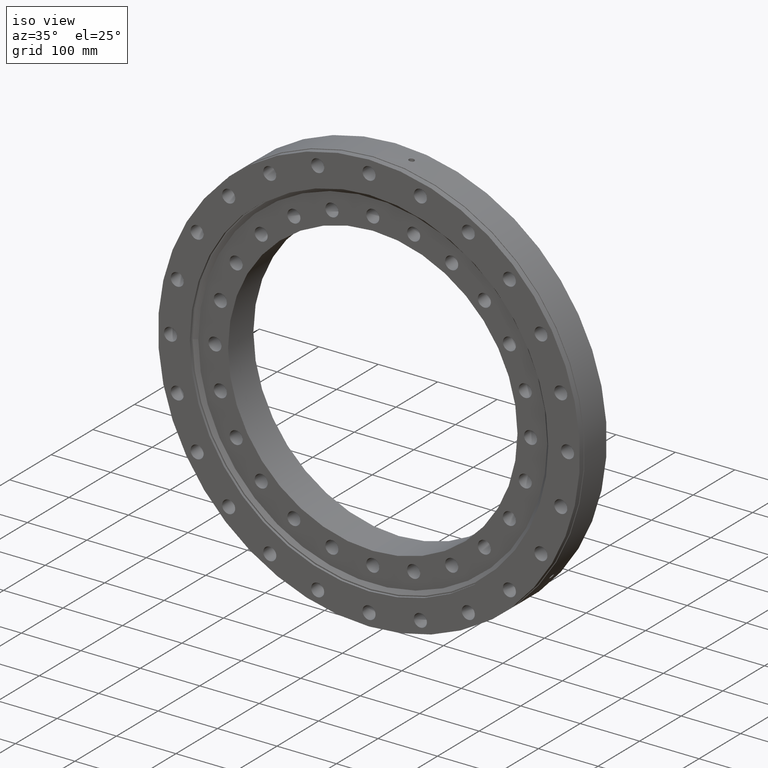
[diagram: clean part render]
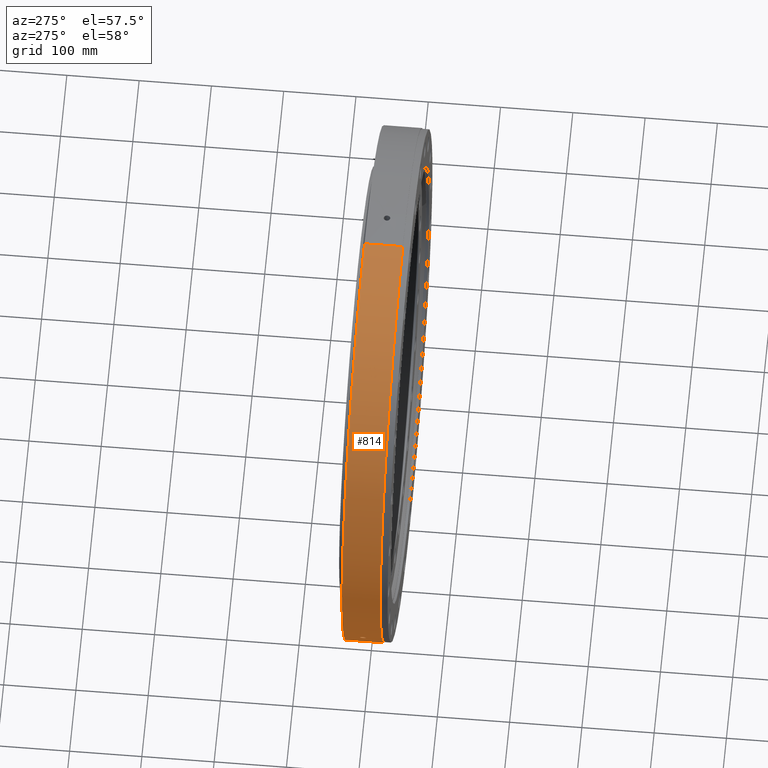
[diagram: tour spotlight — one face highlighted and labeled with its STEP entity id]
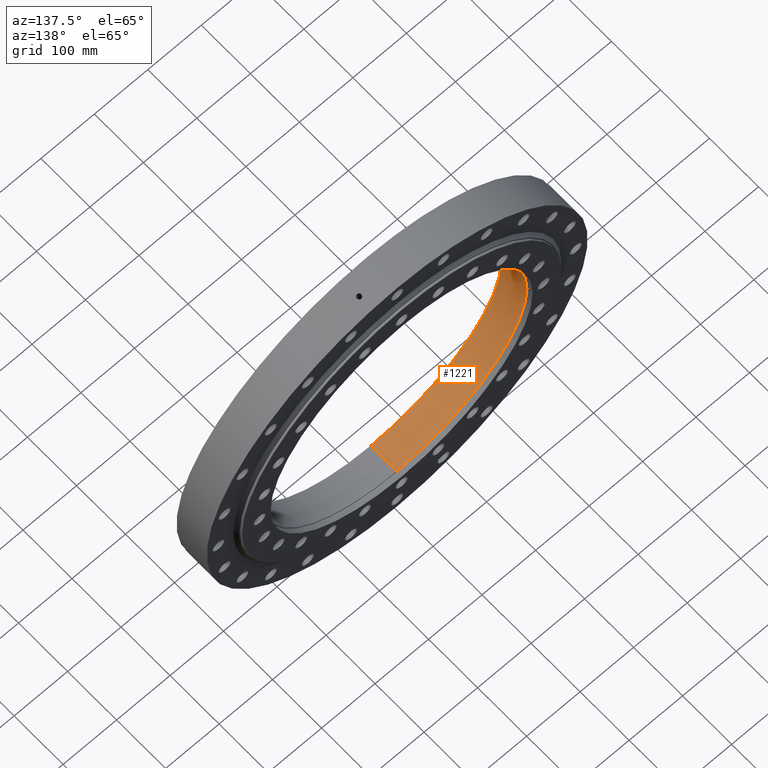
[diagram: tour spotlight — one face highlighted and labeled with its STEP entity id]
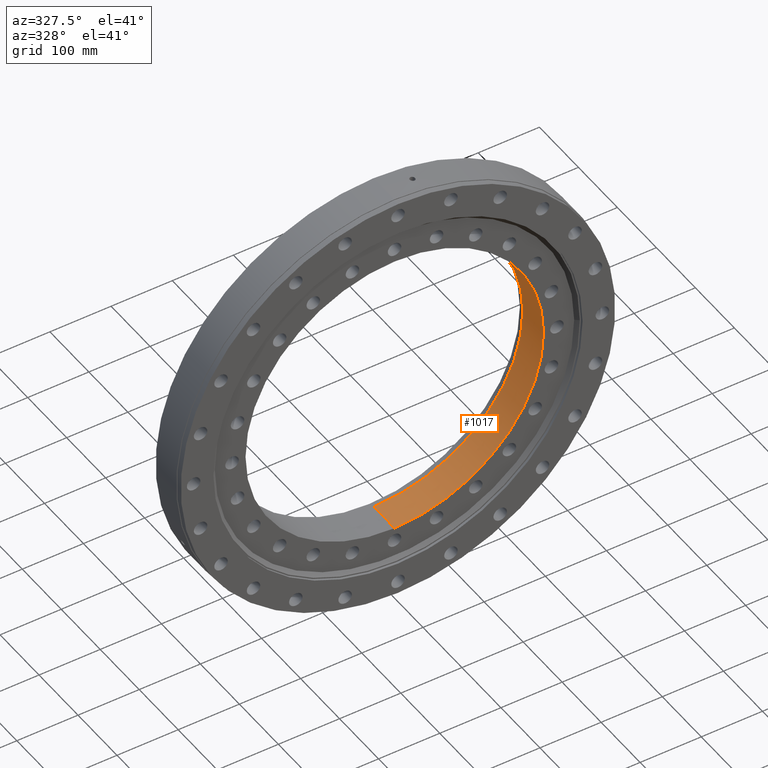
[diagram: tour spotlight — one face highlighted and labeled with its STEP entity id]
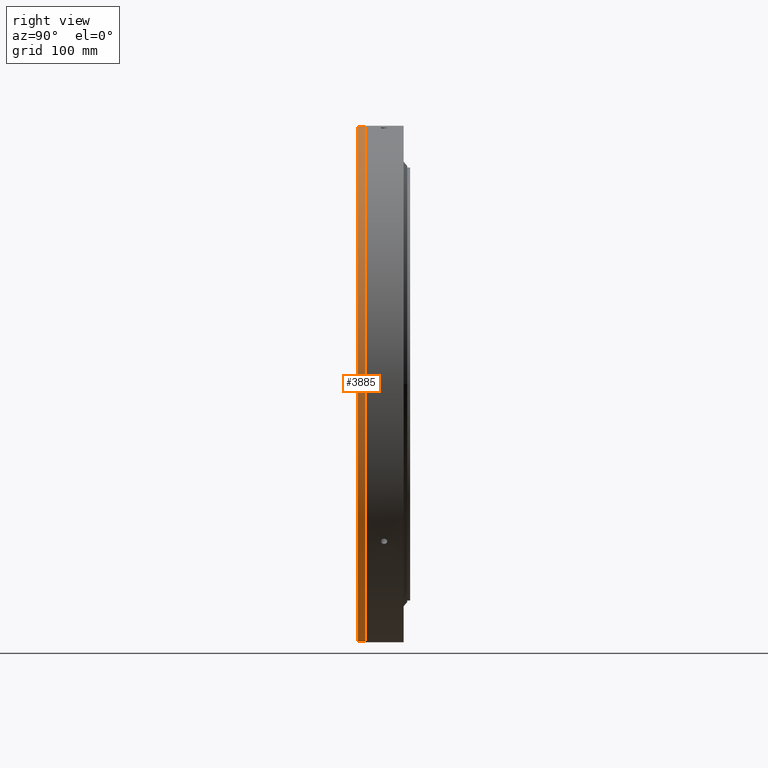
[diagram: tour spotlight — one face highlighted and labeled with its STEP entity id]
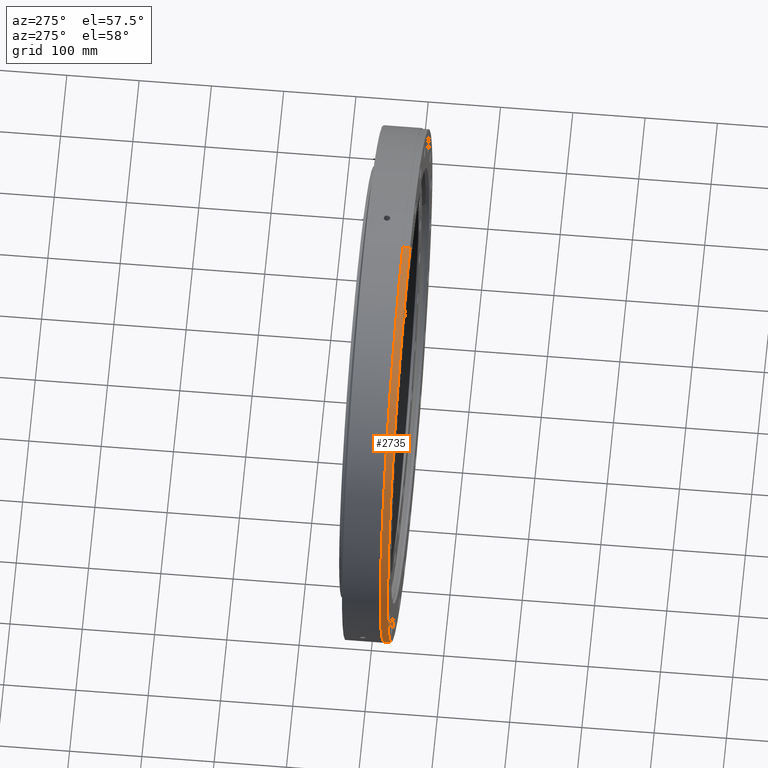
[diagram: tour spotlight — one face highlighted and labeled with its STEP entity id]
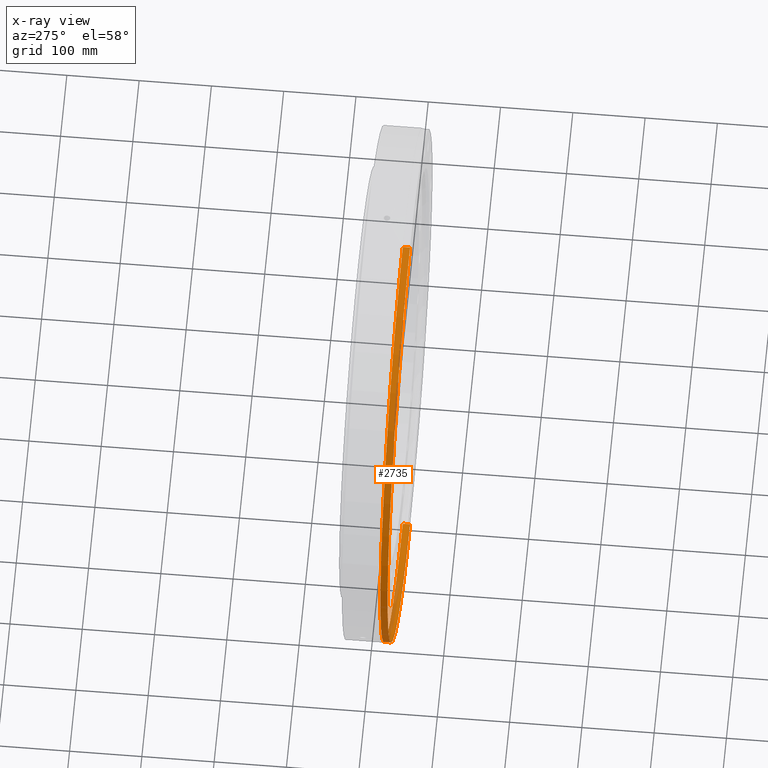
[diagram: x-ray of the same camera — body ghosted, this tour face saturated]
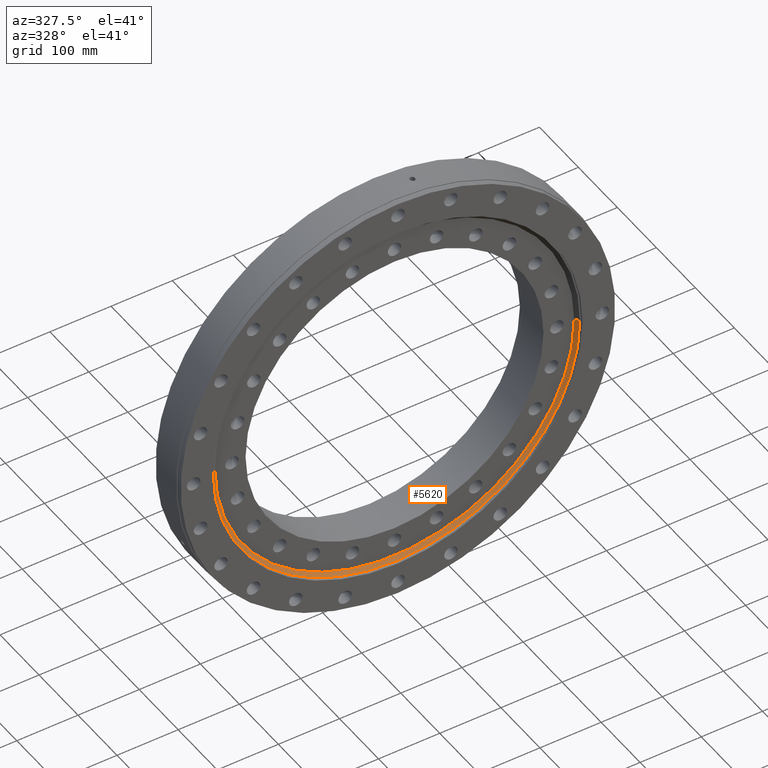
[diagram: tour spotlight — one face highlighted and labeled with its STEP entity id]
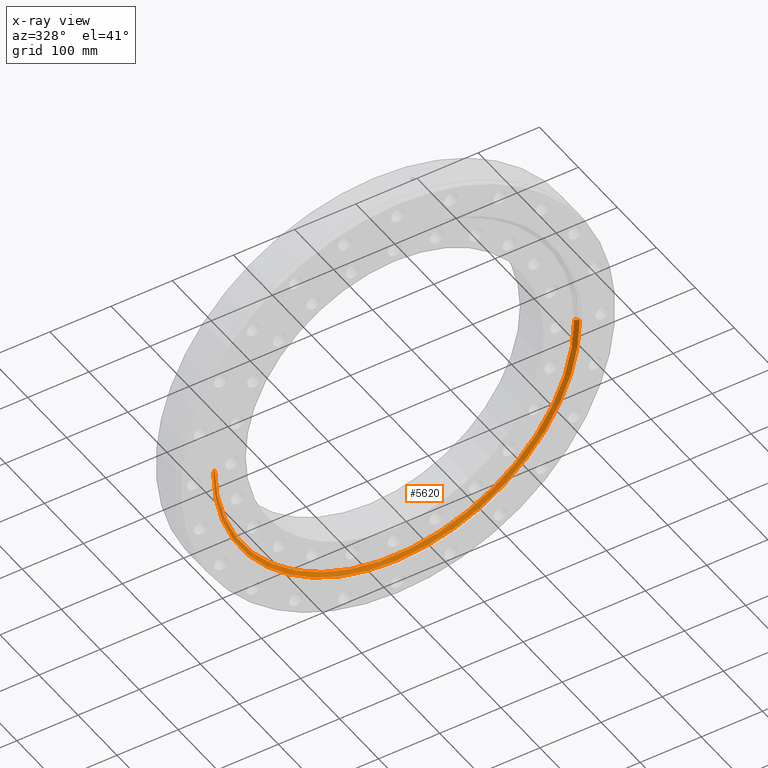
[diagram: x-ray of the same camera — body ghosted, this tour face saturated]
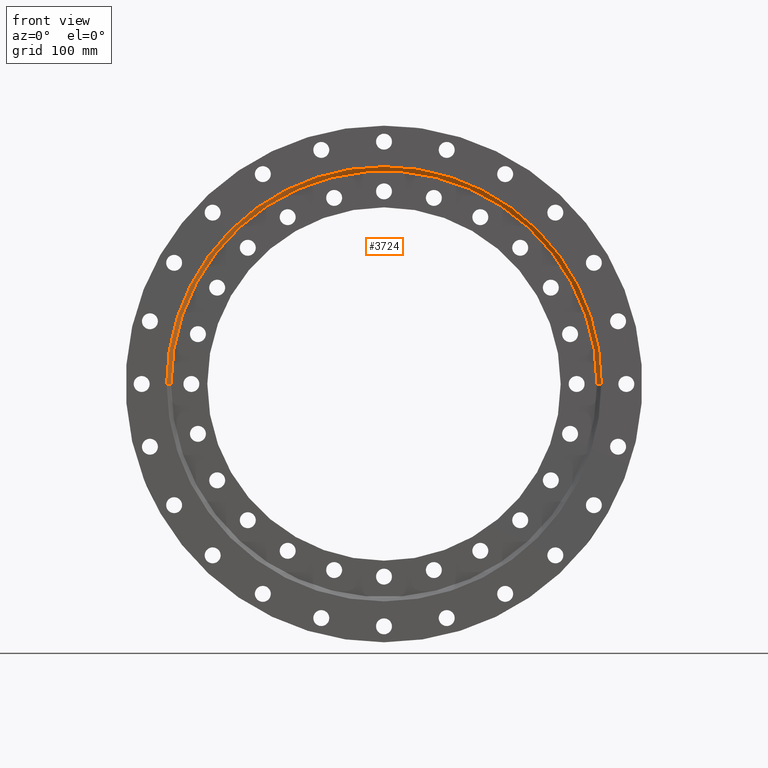
[diagram: tour spotlight — one face highlighted and labeled with its STEP entity id]
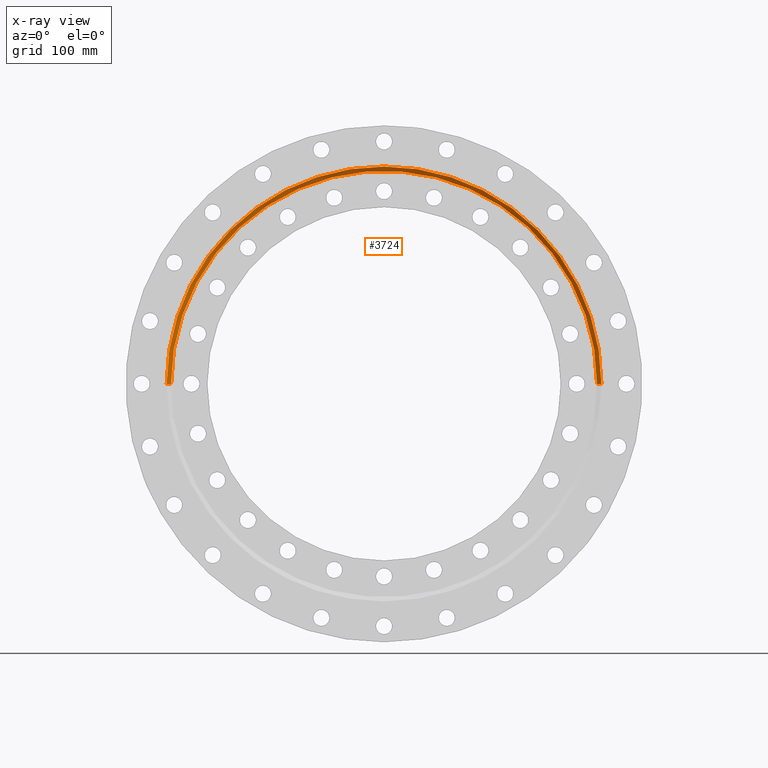
[diagram: x-ray of the same camera — body ghosted, this tour face saturated]
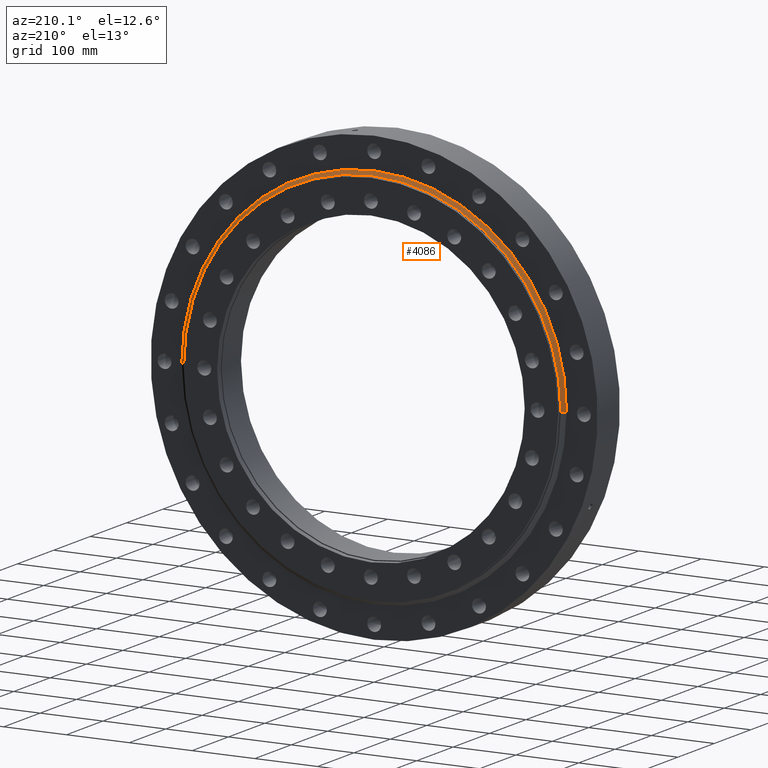
[diagram: tour spotlight — one face highlighted and labeled with its STEP entity id]
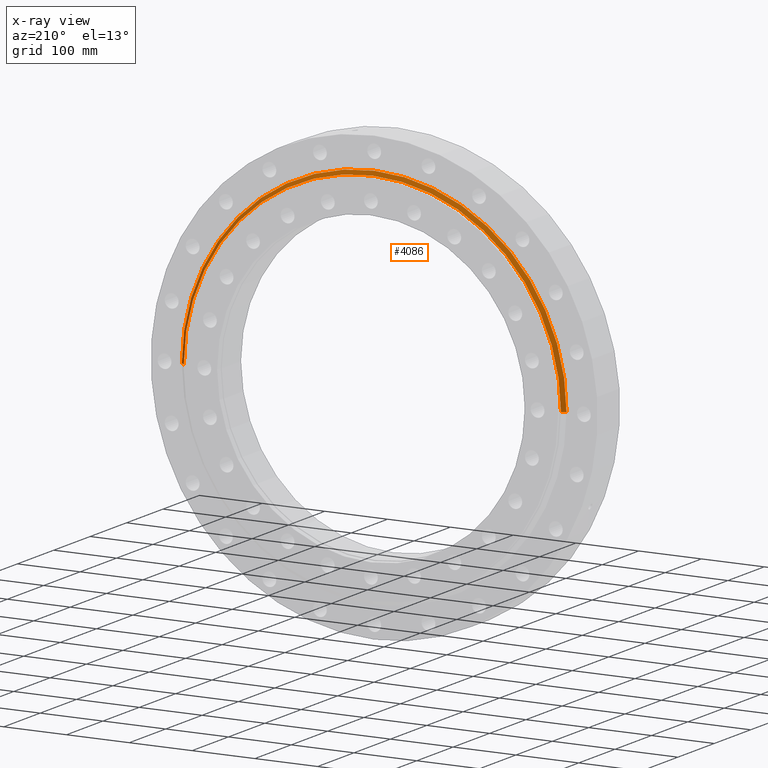
[diagram: x-ray of the same camera — body ghosted, this tour face saturated]
A machine part: a face-by-face anatomy tour. The part has 164 B-rep faces; the first image is the clean iso view, then the 8 largest visible faces are spotlighted one at a time (largest first), each with its STEP entity span.

Face 1 — auxiliary view, entity #814. In plain terms, the highlighted cylindrical surface (partial cylindrical patch) has radius 356 mm, axis along (-0, 1, -0).
Definition (entity closure, byte-faithful):
#479 = DIRECTION ( 'NONE',  ( 0.0000000000000000000, -4.872818752743839900E-017, -1.000000000000000000 ) ) ;
#487 = DIRECTION ( 'NONE',  ( 0.0000000000000000000, -1.000000000000000000, 5.328613396463909800E-017 ) ) ;
#493 = ORIENTED_EDGE ( 'NONE', *, *, #1100, .T. ) ;
#601 = DIRECTION ( 'NONE',  ( -0.0000000000000000000, 1.000000000000000000, -0.0000000000000000000 ) ) ;
#605 = AXIS2_PLACEMENT_3D ( 'NONE', #2501, #487, #479 ) ;
#796 = CARTESIAN_POINT ( 'NONE',  ( -330.4271939415286900, 1.997042786059136700, -132.4910644047244300 ) ) ;
#814 = ADVANCED_FACE ( 'NONE', ( #4787, #4983 ), #4641, .T. ) ;
#824 = CIRCLE ( 'NONE', #1428, 356.0000000000000000 ) ;
#842 = AXIS2_PLACEMENT_3D ( 'NONE', #1671, #3530, #1320 ) ;
#871 = CARTESIAN_POINT ( 'NONE',  ( -329.0132101183047600, 4.500247997915082000, -135.9646851159176600 ) ) ;
#887 = CARTESIAN_POINT ( 'NONE',  ( -328.7861197692954000, 4.499748828676175100, -136.5129132282840800 ) ) ;
#891 = CARTESIAN_POINT ( 'NONE',  ( -328.6740043066543500, 4.470445292756910000, -136.7826071033636300 ) ) ;
#1010 = CARTESIAN_POINT ( 'NONE',  ( 4.359742604964577000E-014, 22.16364734299516900, -356.0000000000000000 ) ) ;
#1021 = CARTESIAN_POINT ( 'NONE',  ( -329.4521224871458600, 4.271332156043720300, -134.8976407231726300 ) ) ;
#1045 = CARTESIAN_POINT ( 'NONE',  ( -329.9400164859307600, 3.581688725606091000, -133.6998327895142600 ) ) ;
#1052 = CARTESIAN_POINT ( 'NONE',  ( -329.1252313925938300, 4.471227261515164900, -135.6932743967939200 ) ) ;
#1082 = CARTESIAN_POINT ( 'NONE',  ( -329.3439687942141100, 4.357377859774766500, -135.1615066305037100 ) ) ;
#1086 = CARTESIAN_POINT ( 'NONE',  ( -327.7504454917547600, 3.387315624446554100, -138.9808923973960200 ) ) ;
#1100 = EDGE_CURVE ( 'NONE', #2029, #3570, #3224, .T. ) ;
#1143 = CARTESIAN_POINT ( 'NONE',  ( 0.0000000000000000000, 27.00000000000000400, 356.0000000000000000 ) ) ;
#1156 = EDGE_CURVE ( 'NONE', #3957, #2337, #3960, .T. ) ;
#1175 = CARTESIAN_POINT ( 'NONE',  ( -328.0311250438721800, 3.904562317007721300, -138.3171749185567900 ) ) ;
#1191 = CARTESIAN_POINT ( 'NONE',  ( -327.8406728299349300, 3.577392116918621100, -138.7679830271185000 ) ) ;
#1213 = CARTESIAN_POINT ( 'NONE',  ( -330.5860934775637400, 0.5914379281064137100, -132.0940505456970300 ) ) ;
#1287 = CARTESIAN_POINT ( 'NONE',  ( -330.5969119018097300, 0.2972615204962667500, -132.0669596870734200 ) ) ;
#1295 = CARTESIAN_POINT ( 'NONE',  ( -330.5969119018096800, 5.438588137684352900E-009, -132.0669596870734200 ) ) ;
#1320 = DIRECTION ( 'NONE',  ( 0.0000000000000000000, 0.0000000000000000000, 1.000000000000000000 ) ) ;
#1389 = EDGE_CURVE ( 'NONE', #2337, #2134, #3191, .T. ) ;
#1428 = AXIS2_PLACEMENT_3D ( 'NONE', #4618, #4635, #3078 ) ;
#1486 = CARTESIAN_POINT ( 'NONE',  ( -330.5428658219311200, 1.173645218378437400, -132.2021832064450800 ) ) ;
#1535 = CARTESIAN_POINT ( 'NONE',  ( -327.2433753956552200, 1.449890769225241000, -140.1705597386401200 ) ) ;
#1625 = CARTESIAN_POINT ( 'NONE',  ( -329.6585661736801300, 4.045620982505898400, -134.3923518369886900 ) ) ;
#1643 = CARTESIAN_POINT ( 'NONE',  ( -329.7560767389687200, 3.907534679854682800, -134.1528591585127100 ) ) ;
#1671 = CARTESIAN_POINT ( 'NONE',  ( 0.0000000000000000000, 22.16364734299516900, 0.0000000000000000000 ) ) ;
#1860 = DIRECTION ( 'NONE',  ( -0.0000000000000000000, 1.000000000000000000, -0.0000000000000000000 ) ) ;
#1989 = CARTESIAN_POINT ( 'NONE',  ( -327.1527610105239300, 0.2936307175006427400, -140.3818754796750500 ) ) ;
#2029 = VERTEX_POINT ( 'NONE', #3315 ) ;
#2108 = CARTESIAN_POINT ( 'NONE',  ( -330.5969119018097900, -0.2973286487898396100, -132.0669596870734200 ) ) ;
#2122 = CARTESIAN_POINT ( 'NONE',  ( -330.5969119018096800, 5.438588137684352900E-009, -132.0669596870734200 ) ) ;
#2134 = VERTEX_POINT ( 'NONE', #5420 ) ;
#2154 = CARTESIAN_POINT ( 'NONE',  ( -330.5860897225708800, -0.5896875945433908100, -132.0940594806786000 ) ) ;
#2159 = CARTESIAN_POINT ( 'NONE',  ( -330.5436484486862100, -1.164872722872504700, -132.2002259392016000 ) ) ;
#2169 = CARTESIAN_POINT ( 'NONE',  ( -330.5115136970501300, -1.450677899408803400, -132.2805808703633900 ) ) ;
#2178 = CARTESIAN_POINT ( 'NONE',  ( -330.4274952240775700, -1.995686836894243500, -132.4903134635066800 ) ) ;
#2180 = CARTESIAN_POINT ( 'NONE',  ( -330.3760336718944500, -2.254175535764747300, -132.6186376398064800 ) ) ;
#2194 = CARTESIAN_POINT ( 'NONE',  ( -330.2542115043682400, -2.743372602601172400, -132.9217155239848300 ) ) ;
#2196 = CARTESIAN_POINT ( 'NONE',  ( -330.1831994926375800, -2.974983297583644800, -133.0980762071556900 ) ) ;
#2202 = CARTESIAN_POINT ( 'NONE',  ( -330.0277085615428500, -3.390112460938035500, -133.4831626043451000 ) ) ;
#2204 = CARTESIAN_POINT ( 'NONE',  ( -329.9427005109508300, -3.576388338231253800, -133.6932118617980100 ) ) ;
#2216 = CARTESIAN_POINT ( 'NONE',  ( -329.7576148335198200, -3.905343335439300100, -134.1490811660319500 ) ) ;
#2225 = CARTESIAN_POINT ( 'NONE',  ( -329.6588254605740600, -4.045119056933976300, -134.3917115084803100 ) ) ;
#2233 = CARTESIAN_POINT ( 'NONE',  ( -329.4539964553608800, -4.269499444270415700, -134.8930596651099200 ) ) ;
#2241 = CARTESIAN_POINT ( 'NONE',  ( -329.3464477738159500, -4.355841732852921300, -135.1554723714506000 ) ) ;
#2247 = CARTESIAN_POINT ( 'NONE',  ( -329.1254549433624600, -4.471353753909670400, -135.6927384995435900 ) ) ;
#2249 = CARTESIAN_POINT ( 'NONE',  ( -329.0140440850166800, -4.499895665181384200, -135.9626601046009000 ) ) ;
#2260 = CARTESIAN_POINT ( 'NONE',  ( -328.7894039782066200, -4.500103758451950300, -136.5049961706610600 ) ) ;
#2270 = CARTESIAN_POINT ( 'NONE',  ( -328.6749757298283600, -4.470844416282570700, -136.7802749390355600 ) ) ;
#2274 = CARTESIAN_POINT ( 'NONE',  ( -328.4527841677456800, -4.355940549378694000, -137.3129704574833200 ) ) ;
#2284 = CARTESIAN_POINT ( 'NONE',  ( -327.2093252609560600, 1.165422432517882100, -140.2499938342034200 ) ) ;
#2291 = CARTESIAN_POINT ( 'NONE',  ( -328.3444674756951300, -4.270946840081716500, -137.5717445292188800 ) ) ;
#2300 = CARTESIAN_POINT ( 'NONE',  ( -328.1335335390800200, -4.045561498802025600, -138.0741046752354500 ) ) ;
#2312 = CARTESIAN_POINT ( 'NONE',  ( -328.0312025720757000, -3.904597902317168000, -138.3169895631981800 ) ) ;
#2321 = CARTESIAN_POINT ( 'NONE',  ( -327.8414085234291500, -3.578753093429690900, -138.7662434458827900 ) ) ;
#2328 = CARTESIAN_POINT ( 'NONE',  ( -327.7527216475098200, -3.392748378396292200, -138.9755287666727100 ) ) ;
#2331 = CARTESIAN_POINT ( 'NONE',  ( -327.5884529706514200, -2.972763685373589900, -139.3622962770836000 ) ) ;
#2337 = VERTEX_POINT ( 'NONE', #2426 ) ;
#2338 = CARTESIAN_POINT ( 'NONE',  ( -327.5153453020208800, -2.744957978383337300, -139.5339569753525100 ) ) ;
#2353 = CARTESIAN_POINT ( 'NONE',  ( -327.2432154732031200, -1.449124304710475800, -140.1709338093497500 ) ) ;
#2373 = CARTESIAN_POINT ( 'NONE',  ( -327.1643699133297200, -0.5919636264769601000, -140.3548302225026700 ) ) ;
#2380 = CARTESIAN_POINT ( 'NONE',  ( -327.2097012510101900, -1.168567819524556100, -140.2491166275147500 ) ) ;
#2400 = CARTESIAN_POINT ( 'NONE',  ( -330.5108220529975300, 1.455755793880187700, -132.2823085262016000 ) ) ;
#2403 = CARTESIAN_POINT ( 'NONE',  ( -327.1527610105239900, -0.2936970257449021400, -140.3818754796750500 ) ) ;
#2426 = CARTESIAN_POINT ( 'NONE',  ( 4.359742604964577000E-014, -26.00000000000005300, -356.0000000000000000 ) ) ;
#2448 = CARTESIAN_POINT ( 'NONE',  ( -327.3874602421766400, -2.257529204276467600, -139.8337492656141900 ) ) ;
#2455 = CARTESIAN_POINT ( 'NONE',  ( -330.2522472111152800, 2.750361712223391200, -132.9265972388800500 ) ) ;
#2461 = CARTESIAN_POINT ( 'NONE',  ( -328.4525726955618600, 4.355727420734256200, -137.3134742209605900 ) ) ;
#2475 = CARTESIAN_POINT ( 'NONE',  ( -328.3420782427723500, 4.268829393079695200, -137.5774460455280100 ) ) ;
#2483 = CARTESIAN_POINT ( 'NONE',  ( -328.1314340943913000, 4.042873387018958400, -138.0790931471926200 ) ) ;
#2501 = CARTESIAN_POINT ( 'NONE',  ( 0.0000000000000000000, -26.00000000000003600, 0.0000000000000000000 ) ) ;
#2542 = CARTESIAN_POINT ( 'NONE',  ( -327.3320969496107300, -1.994556386775453900, -139.9632489791411000 ) ) ;
#2772 = CARTESIAN_POINT ( 'NONE',  ( -327.3315561919133600, 1.991451975893170100, -139.9645129265474000 ) ) ;
#2895 = CARTESIAN_POINT ( 'NONE',  ( -327.1527610105239300, 5.438586179781071600E-009, -140.3818754796750500 ) ) ;
#3012 = EDGE_CURVE ( 'NONE', #3957, #4818, #5084, .T. ) ;
#3078 = DIRECTION ( 'NONE',  ( 0.0000000000000000000, 0.0000000000000000000, 1.000000000000000000 ) ) ;
#3126 = VECTOR ( 'NONE', #1860, 1000.000000000000000 ) ;
#3139 = CARTESIAN_POINT ( 'NONE',  ( -327.1639891793455500, 0.5854562001697842800, -140.3557177049847000 ) ) ;
#3164 = CARTESIAN_POINT ( 'NONE',  ( -327.3862411679838800, 2.252564406507306900, -139.8366052861642000 ) ) ;
#3170 = CARTESIAN_POINT ( 'NONE',  ( -327.5153890740775800, 2.745440298200632500, -139.5338561199949100 ) ) ;
#3191 = LINE ( 'NONE', #1010, #3126 ) ;
#3224 = B_SPLINE_CURVE_WITH_KNOTS ( 'NONE', 3,
 ( #2895, #1989, #3139, #2284, #1535, #2772, #3164, #3170, #3302, #1086, #1191, #1175, #2483, #2475, #2461, #891, #887, #871, #1052, #1082, #1021, #1625, #1643, #1045, #3298, #3290, #2455, #3574, #796, #2400, #1486, #1213, #1287, #1295 ),
 .UNSPECIFIED., .F., .F.,
 ( 4, 2, 2, 2, 2, 2, 2, 2, 2, 2, 2, 2, 2, 2, 2, 2, 4 ),
 ( 0.01406919762530286000, 0.01494832391835146600, 0.01582745021140007100, 0.01670657650444867500, 0.01758570279749727800, 0.01846482909054588500, 0.01934395538359448900, 0.02022308167664309300, 0.02110220796969170000, 0.02198133426274030700, 0.02286046055578891100, 0.02373958684883751400, 0.02461871314188612100, 0.02549783943493472500, 0.02637696572798332900, 0.02725609202103193600, 0.02813521831408053900 ),
 .UNSPECIFIED. ) ;
#3258 = ORIENTED_EDGE ( 'NONE', *, *, #3987, .F. ) ;
#3290 = CARTESIAN_POINT ( 'NONE',  ( -330.1826472403176900, 2.976680160880213100, -133.0994465365282900 ) ) ;
#3298 = CARTESIAN_POINT ( 'NONE',  ( -330.0269927956837300, 3.391799149983895800, -133.4849326073618600 ) ) ;
#3302 = CARTESIAN_POINT ( 'NONE',  ( -327.5883683501824100, 2.972155008603625700, -139.3624909840718000 ) ) ;
#3315 = CARTESIAN_POINT ( 'NONE',  ( -327.1527610105239300, 5.438586179781071600E-009, -140.3818754796750500 ) ) ;
#3530 = DIRECTION ( 'NONE',  ( -0.0000000000000000000, 1.000000000000000000, -0.0000000000000000000 ) ) ;
#3570 = VERTEX_POINT ( 'NONE', #5047 ) ;
#3574 = CARTESIAN_POINT ( 'NONE',  ( -330.3749087704861700, 2.259569237038254700, -132.6214413147133400 ) ) ;
#3902 = B_SPLINE_CURVE_WITH_KNOTS ( 'NONE', 3,
 ( #2122, #2108, #2154, #2159, #2169, #2178, #2180, #2194, #2196, #2202, #2204, #2216, #2225, #2233, #2241, #2247, #2249, #2260, #2270, #2274, #2291, #2300, #2312, #2321, #2328, #2331, #2338, #2448, #2542, #2353, #2380, #2373, #2403, #5087 ),
 .UNSPECIFIED., .F., .F.,
 ( 4, 2, 2, 2, 2, 2, 2, 2, 2, 2, 2, 2, 2, 2, 2, 2, 4 ),
 ( 3.292249798586938500E-018, 0.0008793248515814320100, 0.001758649703162860300, 0.002637974554744288700, 0.003517299406325717200, 0.004396624257907145300, 0.005275949109488573900, 0.006155273961070003300, 0.007034598812651431800, 0.007913923664232859500, 0.008793248515814288900, 0.009672573367395718300, 0.01055189821897714600, 0.01143122307055857500, 0.01231054792214000500, 0.01318987277372143200, 0.01406919762530286000 ),
 .UNSPECIFIED. ) ;
#3957 = VERTEX_POINT ( 'NONE', #4257 ) ;
#3960 = CIRCLE ( 'NONE', #605, 356.0000000000000000 ) ;
#3987 = EDGE_CURVE ( 'NONE', #2134, #4818, #824, .T. ) ;
#4257 = CARTESIAN_POINT ( 'NONE',  ( 0.0000000000000000000, -26.00000000000002100, 356.0000000000000000 ) ) ;
#4562 = ORIENTED_EDGE ( 'NONE', *, *, #1156, .F. ) ;
#4618 = CARTESIAN_POINT ( 'NONE',  ( 0.0000000000000000000, 27.00000000000000400, 0.0000000000000000000 ) ) ;
#4635 = DIRECTION ( 'NONE',  ( -0.0000000000000000000, 1.000000000000000000, -0.0000000000000000000 ) ) ;
#4641 = CYLINDRICAL_SURFACE ( 'NONE', #842, 356.0000000000000000 ) ;
#4703 = ORIENTED_EDGE ( 'NONE', *, *, #1389, .F. ) ;
#4787 = FACE_OUTER_BOUND ( 'NONE', #4813, .T. ) ;
#4813 = EDGE_LOOP ( 'NONE', ( #4703, #4562, #5414, #3258 ) ) ;
#4818 = VERTEX_POINT ( 'NONE', #1143 ) ;
#4860 = ORIENTED_EDGE ( 'NONE', *, *, #5091, .T. ) ;
#4931 = VECTOR ( 'NONE', #601, 1000.000000000000000 ) ;
#4983 = FACE_BOUND ( 'NONE', #5478, .T. ) ;
#5047 = CARTESIAN_POINT ( 'NONE',  ( -330.5969119018096800, 5.438588137684352900E-009, -132.0669596870734200 ) ) ;
#5084 = LINE ( 'NONE', #5393, #4931 ) ;
#5087 = CARTESIAN_POINT ( 'NONE',  ( -327.1527610105239300, 5.438586179781071600E-009, -140.3818754796750500 ) ) ;
#5091 = EDGE_CURVE ( 'NONE', #3570, #2029, #3902, .T. ) ;
#5393 = CARTESIAN_POINT ( 'NONE',  ( 0.0000000000000000000, 22.16364734299516900, 356.0000000000000000 ) ) ;
#5414 = ORIENTED_EDGE ( 'NONE', *, *, #3012, .T. ) ;
#5420 = CARTESIAN_POINT ( 'NONE',  ( 4.359742604964577000E-014, 27.00000000000000400, -356.0000000000000000 ) ) ;
#5478 = EDGE_LOOP ( 'NONE', ( #4860, #493 ) ) ;

Face 2 — auxiliary view, entity #1221. In plain terms, the highlighted cylindrical surface (partial cylindrical patch) has radius 243.5 mm, axis along (-0, 1, -0).
Definition (entity closure, byte-faithful):
#59 = LINE ( 'NONE', #5239, #2611 ) ;
#139 = AXIS2_PLACEMENT_3D ( 'NONE', #1279, #3869, #4150 ) ;
#520 = CARTESIAN_POINT ( 'NONE',  ( 0.0000000000000000000, 25.99999999999996800, 243.5000000000000000 ) ) ;
#703 = VERTEX_POINT ( 'NONE', #3327 ) ;
#786 = ORIENTED_EDGE ( 'NONE', *, *, #5356, .F. ) ;
#1106 = ORIENTED_EDGE ( 'NONE', *, *, #4754, .F. ) ;
#1125 = DIRECTION ( 'NONE',  ( -0.0000000000000000000, 1.000000000000000000, -2.727064569436389700E-017 ) ) ;
#1177 = VERTEX_POINT ( 'NONE', #520 ) ;
#1221 = ADVANCED_FACE ( 'NONE', ( #3567 ), #3550, .F. ) ;
#1279 = CARTESIAN_POINT ( 'NONE',  ( 0.0000000000000000000, 31.02910628019324300, -1.692367527159823000E-015 ) ) ;
#1435 = CIRCLE ( 'NONE', #3299, 243.5000000000000000 ) ;
#1649 = DIRECTION ( 'NONE',  ( -0.0000000000000000000, 1.000000000000000000, -2.727064569436389700E-017 ) ) ;
#1699 = ORIENTED_EDGE ( 'NONE', *, *, #3047, .F. ) ;
#1718 = CARTESIAN_POINT ( 'NONE',  ( 0.0000000000000000000, 25.99999999999996800, -1.555220551633371800E-015 ) ) ;
#2069 = CARTESIAN_POINT ( 'NONE',  ( 0.0000000000000000000, 31.02910628019325000, 243.5000000000000000 ) ) ;
#2138 = VERTEX_POINT ( 'NONE', #5103 ) ;
#2302 = CARTESIAN_POINT ( 'NONE',  ( 0.0000000000000000000, -27.00000000000002500, -1.098763298320856700E-016 ) ) ;
#2489 = DIRECTION ( 'NONE',  ( -0.0000000000000000000, 1.000000000000000000, -2.727064569436389700E-017 ) ) ;
#2611 = VECTOR ( 'NONE', #1125, 1000.000000000000000 ) ;
#2942 = DIRECTION ( 'NONE',  ( 0.0000000000000000000, 2.849648420495781400E-017, 1.000000000000000000 ) ) ;
#3017 = VERTEX_POINT ( 'NONE', #3361 ) ;
#3047 = EDGE_CURVE ( 'NONE', #703, #1177, #4822, .T. ) ;
#3119 = DIRECTION ( 'NONE',  ( 0.0000000000000000000, 0.0000000000000000000, 1.000000000000000000 ) ) ;
#3299 = AXIS2_PLACEMENT_3D ( 'NONE', #1718, #5312, #3119 ) ;
#3327 = CARTESIAN_POINT ( 'NONE',  ( 0.0000000000000000000, -27.00000000000001800, 243.5000000000000000 ) ) ;
#3361 = CARTESIAN_POINT ( 'NONE',  ( 2.982014955923805300E-014, -27.00000000000003200, -243.5000000000000000 ) ) ;
#3550 = CYLINDRICAL_SURFACE ( 'NONE', #139, 243.5000000000000000 ) ;
#3567 = FACE_OUTER_BOUND ( 'NONE', #4356, .T. ) ;
#3869 = DIRECTION ( 'NONE',  ( -0.0000000000000000000, 1.000000000000000000, -2.727064569436389700E-017 ) ) ;
#4150 = DIRECTION ( 'NONE',  ( 0.0000000000000000000, 2.849648420495781400E-017, 1.000000000000000000 ) ) ;
#4356 = EDGE_LOOP ( 'NONE', ( #786, #4810, #1106, #1699 ) ) ;
#4539 = EDGE_CURVE ( 'NONE', #3017, #2138, #59, .T. ) ;
#4661 = VECTOR ( 'NONE', #1649, 1000.000000000000000 ) ;
#4754 = EDGE_CURVE ( 'NONE', #1177, #2138, #1435, .T. ) ;
#4799 = AXIS2_PLACEMENT_3D ( 'NONE', #2302, #2489, #2942 ) ;
#4810 = ORIENTED_EDGE ( 'NONE', *, *, #4539, .T. ) ;
#4822 = LINE ( 'NONE', #2069, #4661 ) ;
#5103 = CARTESIAN_POINT ( 'NONE',  ( 2.982014955923805300E-014, 25.99999999999996800, -243.5000000000000000 ) ) ;
#5239 = CARTESIAN_POINT ( 'NONE',  ( 2.982014955923805300E-014, 31.02910628019323600, -243.5000000000000000 ) ) ;
#5312 = DIRECTION ( 'NONE',  ( 0.0000000000000000000, -1.000000000000000000, 0.0000000000000000000 ) ) ;
#5356 = EDGE_CURVE ( 'NONE', #3017, #703, #5849, .T. ) ;
#5849 = CIRCLE ( 'NONE', #4799, 243.5000000000000000 ) ;

Face 3 — auxiliary view, entity #1017. In plain terms, the highlighted cylindrical surface (partial cylindrical patch) has radius 243.5 mm, axis along (-0, 1, -0).
Definition (entity closure, byte-faithful):
#59 = LINE ( 'NONE', #5239, #2611 ) ;
#240 = AXIS2_PLACEMENT_3D ( 'NONE', #5341, #5205, #5165 ) ;
#419 = ORIENTED_EDGE ( 'NONE', *, *, #3047, .T. ) ;
#520 = CARTESIAN_POINT ( 'NONE',  ( 0.0000000000000000000, 25.99999999999996800, 243.5000000000000000 ) ) ;
#703 = VERTEX_POINT ( 'NONE', #3327 ) ;
#1017 = ADVANCED_FACE ( 'NONE', ( #4439 ), #4362, .F. ) ;
#1125 = DIRECTION ( 'NONE',  ( -0.0000000000000000000, 1.000000000000000000, -2.727064569436389700E-017 ) ) ;
#1177 = VERTEX_POINT ( 'NONE', #520 ) ;
#1649 = DIRECTION ( 'NONE',  ( -0.0000000000000000000, 1.000000000000000000, -2.727064569436389700E-017 ) ) ;
#2068 = CARTESIAN_POINT ( 'NONE',  ( 0.0000000000000000000, -27.00000000000002500, -1.098763298320856700E-016 ) ) ;
#2069 = CARTESIAN_POINT ( 'NONE',  ( 0.0000000000000000000, 31.02910628019325000, 243.5000000000000000 ) ) ;
#2084 = DIRECTION ( 'NONE',  ( -0.0000000000000000000, 1.000000000000000000, -2.727064569436389700E-017 ) ) ;
#2102 = EDGE_LOOP ( 'NONE', ( #5745, #2255, #419, #5363 ) ) ;
#2111 = DIRECTION ( 'NONE',  ( 0.0000000000000000000, 2.849648420495781400E-017, 1.000000000000000000 ) ) ;
#2138 = VERTEX_POINT ( 'NONE', #5103 ) ;
#2255 = ORIENTED_EDGE ( 'NONE', *, *, #4106, .F. ) ;
#2397 = EDGE_CURVE ( 'NONE', #2138, #1177, #3262, .T. ) ;
#2602 = AXIS2_PLACEMENT_3D ( 'NONE', #3181, #4016, #2763 ) ;
#2611 = VECTOR ( 'NONE', #1125, 1000.000000000000000 ) ;
#2763 = DIRECTION ( 'NONE',  ( 0.0000000000000000000, 0.0000000000000000000, 1.000000000000000000 ) ) ;
#3017 = VERTEX_POINT ( 'NONE', #3361 ) ;
#3047 = EDGE_CURVE ( 'NONE', #703, #1177, #4822, .T. ) ;
#3181 = CARTESIAN_POINT ( 'NONE',  ( 0.0000000000000000000, 25.99999999999996800, -1.555220551633371800E-015 ) ) ;
#3188 = AXIS2_PLACEMENT_3D ( 'NONE', #2068, #2084, #2111 ) ;
#3262 = CIRCLE ( 'NONE', #2602, 243.5000000000000000 ) ;
#3327 = CARTESIAN_POINT ( 'NONE',  ( 0.0000000000000000000, -27.00000000000001800, 243.5000000000000000 ) ) ;
#3361 = CARTESIAN_POINT ( 'NONE',  ( 2.982014955923805300E-014, -27.00000000000003200, -243.5000000000000000 ) ) ;
#4016 = DIRECTION ( 'NONE',  ( 0.0000000000000000000, -1.000000000000000000, 0.0000000000000000000 ) ) ;
#4106 = EDGE_CURVE ( 'NONE', #703, #3017, #4366, .T. ) ;
#4362 = CYLINDRICAL_SURFACE ( 'NONE', #240, 243.5000000000000000 ) ;
#4366 = CIRCLE ( 'NONE', #3188, 243.5000000000000000 ) ;
#4439 = FACE_OUTER_BOUND ( 'NONE', #2102, .T. ) ;
#4539 = EDGE_CURVE ( 'NONE', #3017, #2138, #59, .T. ) ;
#4661 = VECTOR ( 'NONE', #1649, 1000.000000000000000 ) ;
#4822 = LINE ( 'NONE', #2069, #4661 ) ;
#5103 = CARTESIAN_POINT ( 'NONE',  ( 2.982014955923805300E-014, 25.99999999999996800, -243.5000000000000000 ) ) ;
#5165 = DIRECTION ( 'NONE',  ( 0.0000000000000000000, 2.849648420495781400E-017, 1.000000000000000000 ) ) ;
#5205 = DIRECTION ( 'NONE',  ( -0.0000000000000000000, 1.000000000000000000, -2.727064569436389700E-017 ) ) ;
#5239 = CARTESIAN_POINT ( 'NONE',  ( 2.982014955923805300E-014, 31.02910628019323600, -243.5000000000000000 ) ) ;
#5341 = CARTESIAN_POINT ( 'NONE',  ( 0.0000000000000000000, 31.02910628019324300, -1.692367527159823000E-015 ) ) ;
#5363 = ORIENTED_EDGE ( 'NONE', *, *, #2397, .F. ) ;
#5745 = ORIENTED_EDGE ( 'NONE', *, *, #4539, .F. ) ;

Face 4 — right view, entity #3885. In plain terms, the highlighted cylindrical surface (partial cylindrical patch) has radius 355 mm, axis along (-0, 1, -0).
Definition (entity closure, byte-faithful):
#137 = VECTOR ( 'NONE', #5485, 1000.000000000000000 ) ;
#148 = AXIS2_PLACEMENT_3D ( 'NONE', #2527, #2550, #2562 ) ;
#169 = LINE ( 'NONE', #2650, #212 ) ;
#212 = VECTOR ( 'NONE', #4593, 1000.000000000000000 ) ;
#423 = VERTEX_POINT ( 'NONE', #3463 ) ;
#802 = EDGE_LOOP ( 'NONE', ( #1022, #3872, #3868, #4029 ) ) ;
#1022 = ORIENTED_EDGE ( 'NONE', *, *, #3780, .F. ) ;
#1040 = VERTEX_POINT ( 'NONE', #5379 ) ;
#1250 = AXIS2_PLACEMENT_3D ( 'NONE', #5621, #5691, #5701 ) ;
#1980 = EDGE_CURVE ( 'NONE', #2689, #3343, #169, .T. ) ;
#2064 = CYLINDRICAL_SURFACE ( 'NONE', #1250, 355.0000000000000000 ) ;
#2114 = FACE_OUTER_BOUND ( 'NONE', #802, .T. ) ;
#2334 = EDGE_CURVE ( 'NONE', #423, #1040, #3710, .T. ) ;
#2527 = CARTESIAN_POINT ( 'NONE',  ( 0.0000000000000000000, -36.00000000000002100, -1.337991223932613900E-015 ) ) ;
#2550 = DIRECTION ( 'NONE',  ( 0.0000000000000000000, -1.000000000000000000, 0.0000000000000000000 ) ) ;
#2562 = DIRECTION ( 'NONE',  ( 0.0000000000000000000, 0.0000000000000000000, 1.000000000000000000 ) ) ;
#2650 = CARTESIAN_POINT ( 'NONE',  ( 0.0000000000000000000, 61.10955710955711600, 355.0000000000000000 ) ) ;
#2689 = VERTEX_POINT ( 'NONE', #3291 ) ;
#2957 = CARTESIAN_POINT ( 'NONE',  ( 0.0000000000000000000, -26.00000000000002100, 355.0000000000000000 ) ) ;
#3291 = CARTESIAN_POINT ( 'NONE',  ( 0.0000000000000000000, -36.00000000000002100, 355.0000000000000000 ) ) ;
#3343 = VERTEX_POINT ( 'NONE', #2957 ) ;
#3463 = CARTESIAN_POINT ( 'NONE',  ( 4.347496136973103400E-014, -36.00000000000002100, -355.0000000000000000 ) ) ;
#3622 = DIRECTION ( 'NONE',  ( -0.0000000000000000000, 1.000000000000000000, -5.328613396463909800E-017 ) ) ;
#3710 = LINE ( 'NONE', #4986, #137 ) ;
#3780 = EDGE_CURVE ( 'NONE', #423, #2689, #4723, .T. ) ;
#3782 = DIRECTION ( 'NONE',  ( 0.0000000000000000000, 4.886545002751569500E-017, 1.000000000000000000 ) ) ;
#3818 = CARTESIAN_POINT ( 'NONE',  ( 0.0000000000000000000, -26.00000000000003600, -1.870852563579004300E-015 ) ) ;
#3868 = ORIENTED_EDGE ( 'NONE', *, *, #5536, .F. ) ;
#3872 = ORIENTED_EDGE ( 'NONE', *, *, #2334, .T. ) ;
#3885 = ADVANCED_FACE ( 'NONE', ( #2114 ), #2064, .T. ) ;
#4029 = ORIENTED_EDGE ( 'NONE', *, *, #1980, .F. ) ;
#4241 = AXIS2_PLACEMENT_3D ( 'NONE', #3818, #3622, #3782 ) ;
#4593 = DIRECTION ( 'NONE',  ( -0.0000000000000000000, 1.000000000000000000, -5.328613396463909800E-017 ) ) ;
#4723 = CIRCLE ( 'NONE', #148, 355.0000000000000000 ) ;
#4986 = CARTESIAN_POINT ( 'NONE',  ( 4.347496136973103400E-014, 61.10955710955707300, -355.0000000000000000 ) ) ;
#5379 = CARTESIAN_POINT ( 'NONE',  ( 4.347496136973103400E-014, -26.00000000000005300, -355.0000000000000000 ) ) ;
#5485 = DIRECTION ( 'NONE',  ( -0.0000000000000000000, 1.000000000000000000, -5.328613396463909800E-017 ) ) ;
#5536 = EDGE_CURVE ( 'NONE', #3343, #1040, #5605, .T. ) ;
#5605 = CIRCLE ( 'NONE', #4241, 355.0000000000000000 ) ;
#5621 = CARTESIAN_POINT ( 'NONE',  ( 0.0000000000000000000, 61.10955710955709500, -6.512584093319245700E-015 ) ) ;
#5691 = DIRECTION ( 'NONE',  ( -0.0000000000000000000, 1.000000000000000000, -5.328613396463909800E-017 ) ) ;
#5701 = DIRECTION ( 'NONE',  ( 0.0000000000000000000, 5.863854003301882700E-017, 1.000000000000000000 ) ) ;

Face 5 — auxiliary view, entity #2735. An x-ray twin of the same camera follows (body ghosted, this face saturated) — the face is partly hidden behind the body. In plain terms, the highlighted cylindrical surface (partial cylindrical patch) has radius 355 mm, axis along (-0, 1, -0).
Definition (entity closure, byte-faithful):
#21 = CIRCLE ( 'NONE', #1139, 355.0000000000000000 ) ;
#137 = VECTOR ( 'NONE', #5485, 1000.000000000000000 ) ;
#169 = LINE ( 'NONE', #2650, #212 ) ;
#212 = VECTOR ( 'NONE', #4593, 1000.000000000000000 ) ;
#423 = VERTEX_POINT ( 'NONE', #3463 ) ;
#1040 = VERTEX_POINT ( 'NONE', #5379 ) ;
#1139 = AXIS2_PLACEMENT_3D ( 'NONE', #1763, #1745, #1873 ) ;
#1225 = ORIENTED_EDGE ( 'NONE', *, *, #1980, .T. ) ;
#1239 = FACE_OUTER_BOUND ( 'NONE', #3039, .T. ) ;
#1745 = DIRECTION ( 'NONE',  ( 0.0000000000000000000, -1.000000000000000000, 0.0000000000000000000 ) ) ;
#1763 = CARTESIAN_POINT ( 'NONE',  ( 0.0000000000000000000, -36.00000000000002100, -1.337991223932613900E-015 ) ) ;
#1789 = CIRCLE ( 'NONE', #4350, 355.0000000000000000 ) ;
#1859 = EDGE_CURVE ( 'NONE', #2689, #423, #21, .T. ) ;
#1873 = DIRECTION ( 'NONE',  ( 0.0000000000000000000, 0.0000000000000000000, 1.000000000000000000 ) ) ;
#1980 = EDGE_CURVE ( 'NONE', #2689, #3343, #169, .T. ) ;
#2304 = CYLINDRICAL_SURFACE ( 'NONE', #4447, 355.0000000000000000 ) ;
#2334 = EDGE_CURVE ( 'NONE', #423, #1040, #3710, .T. ) ;
#2650 = CARTESIAN_POINT ( 'NONE',  ( 0.0000000000000000000, 61.10955710955711600, 355.0000000000000000 ) ) ;
#2689 = VERTEX_POINT ( 'NONE', #3291 ) ;
#2735 = ADVANCED_FACE ( 'NONE', ( #1239 ), #2304, .T. ) ;
#2957 = CARTESIAN_POINT ( 'NONE',  ( 0.0000000000000000000, -26.00000000000002100, 355.0000000000000000 ) ) ;
#3036 = ORIENTED_EDGE ( 'NONE', *, *, #1859, .F. ) ;
#3039 = EDGE_LOOP ( 'NONE', ( #4125, #3036, #1225, #4039 ) ) ;
#3291 = CARTESIAN_POINT ( 'NONE',  ( 0.0000000000000000000, -36.00000000000002100, 355.0000000000000000 ) ) ;
#3343 = VERTEX_POINT ( 'NONE', #2957 ) ;
#3463 = CARTESIAN_POINT ( 'NONE',  ( 4.347496136973103400E-014, -36.00000000000002100, -355.0000000000000000 ) ) ;
#3710 = LINE ( 'NONE', #4986, #137 ) ;
#3795 = CARTESIAN_POINT ( 'NONE',  ( 0.0000000000000000000, -26.00000000000003600, -1.870852563579004300E-015 ) ) ;
#4039 = ORIENTED_EDGE ( 'NONE', *, *, #5567, .F. ) ;
#4125 = ORIENTED_EDGE ( 'NONE', *, *, #2334, .F. ) ;
#4288 = CARTESIAN_POINT ( 'NONE',  ( 0.0000000000000000000, 61.10955710955709500, -6.512584093319245700E-015 ) ) ;
#4294 = DIRECTION ( 'NONE',  ( 0.0000000000000000000, 5.863854003301882700E-017, 1.000000000000000000 ) ) ;
#4350 = AXIS2_PLACEMENT_3D ( 'NONE', #3795, #5428, #5666 ) ;
#4447 = AXIS2_PLACEMENT_3D ( 'NONE', #4288, #5196, #4294 ) ;
#4593 = DIRECTION ( 'NONE',  ( -0.0000000000000000000, 1.000000000000000000, -5.328613396463909800E-017 ) ) ;
#4986 = CARTESIAN_POINT ( 'NONE',  ( 4.347496136973103400E-014, 61.10955710955707300, -355.0000000000000000 ) ) ;
#5196 = DIRECTION ( 'NONE',  ( -0.0000000000000000000, 1.000000000000000000, -5.328613396463909800E-017 ) ) ;
#5379 = CARTESIAN_POINT ( 'NONE',  ( 4.347496136973103400E-014, -26.00000000000005300, -355.0000000000000000 ) ) ;
#5428 = DIRECTION ( 'NONE',  ( -0.0000000000000000000, 1.000000000000000000, -5.328613396463909800E-017 ) ) ;
#5485 = DIRECTION ( 'NONE',  ( -0.0000000000000000000, 1.000000000000000000, -5.328613396463909800E-017 ) ) ;
#5567 = EDGE_CURVE ( 'NONE', #1040, #3343, #1789, .T. ) ;
#5666 = DIRECTION ( 'NONE',  ( 0.0000000000000000000, 4.886545002751569500E-017, 1.000000000000000000 ) ) ;

Face 6 — auxiliary view, entity #5620. An x-ray twin of the same camera follows (body ghosted, this face saturated) — the face is partly hidden behind the body. In plain terms, the highlighted conical surface has half-angle 49.914 deg.
Definition (entity closure, byte-faithful):
#45 = CIRCLE ( 'NONE', #2056, 293.5874999999998600 ) ;
#307 = CARTESIAN_POINT ( 'NONE',  ( -293.5874999999998600, -27.00000000000000000, 3.632149325421155000E-014 ) ) ;
#581 = ORIENTED_EDGE ( 'NONE', *, *, #1319, .F. ) ;
#783 = DIRECTION ( 'NONE',  ( -1.000000000000000000, 1.852919471982570700E-016, 0.0000000000000000000 ) ) ;
#996 = CARTESIAN_POINT ( 'NONE',  ( -299.5874999999999200, -32.04999999999995500, 3.668888729395575500E-014 ) ) ;
#1292 = CARTESIAN_POINT ( 'NONE',  ( -1.136494085885861800E-014, -32.05000000000001100, 0.0000000000000000000 ) ) ;
#1305 = DIRECTION ( 'NONE',  ( 1.786923420260216300E-016, 1.000000000000000000, -0.0000000000000000000 ) ) ;
#1319 = EDGE_CURVE ( 'NONE', #2569, #1555, #3425, .T. ) ;
#1555 = VERTEX_POINT ( 'NONE', #4973 ) ;
#1596 = CONICAL_SURFACE ( 'NONE', #5115, 299.5874999999999200, 0.8711601305813145800 ) ;
#1650 = LINE ( 'NONE', #996, #4264 ) ;
#1785 = FACE_OUTER_BOUND ( 'NONE', #2371, .T. ) ;
#1834 = CARTESIAN_POINT ( 'NONE',  ( -1.046254453162721600E-014, -27.00000000000005300, 0.0000000000000000000 ) ) ;
#1977 = ORIENTED_EDGE ( 'NONE', *, *, #3172, .F. ) ;
#2007 = EDGE_CURVE ( 'NONE', #2569, #3686, #45, .T. ) ;
#2056 = AXIS2_PLACEMENT_3D ( 'NONE', #1834, #3962, #3866 ) ;
#2246 = EDGE_CURVE ( 'NONE', #3686, #5193, #1650, .T. ) ;
#2371 = EDGE_LOOP ( 'NONE', ( #5488, #3469, #1977, #581 ) ) ;
#2469 = DIRECTION ( 'NONE',  ( 1.000000000000000000, -1.852919471982570700E-016, 0.0000000000000000000 ) ) ;
#2569 = VERTEX_POINT ( 'NONE', #4276 ) ;
#3065 = CARTESIAN_POINT ( 'NONE',  ( 299.5874999999999200, -32.05000000000006100, 0.0000000000000000000 ) ) ;
#3172 = EDGE_CURVE ( 'NONE', #1555, #5193, #4202, .T. ) ;
#3253 = VECTOR ( 'NONE', #3587, 1000.000000000000000 ) ;
#3357 = AXIS2_PLACEMENT_3D ( 'NONE', #1292, #1305, #783 ) ;
#3425 = LINE ( 'NONE', #3065, #3253 ) ;
#3469 = ORIENTED_EDGE ( 'NONE', *, *, #2246, .T. ) ;
#3587 = DIRECTION ( 'NONE',  ( 0.7650765054985598800, -0.6439393921279487100, 0.0000000000000000000 ) ) ;
#3606 = DIRECTION ( 'NONE',  ( -1.786923420260216300E-016, -1.000000000000000000, 0.0000000000000000000 ) ) ;
#3672 = DIRECTION ( 'NONE',  ( -0.7650765054985599900, -0.6439393921279484800, 9.369484935616536900E-017 ) ) ;
#3686 = VERTEX_POINT ( 'NONE', #307 ) ;
#3725 = CARTESIAN_POINT ( 'NONE',  ( -1.136494085885861800E-014, -32.05000000000001100, 0.0000000000000000000 ) ) ;
#3866 = DIRECTION ( 'NONE',  ( -1.000000000000000000, 1.772613080574078900E-016, 0.0000000000000000000 ) ) ;
#3962 = DIRECTION ( 'NONE',  ( 1.786923420260216300E-016, 1.000000000000000000, -0.0000000000000000000 ) ) ;
#4202 = CIRCLE ( 'NONE', #3357, 299.5874999999999200 ) ;
#4264 = VECTOR ( 'NONE', #3672, 1000.000000000000100 ) ;
#4276 = CARTESIAN_POINT ( 'NONE',  ( 293.5874999999998600, -27.00000000000010300, 0.0000000000000000000 ) ) ;
#4471 = CARTESIAN_POINT ( 'NONE',  ( -299.5874999999999200, -32.04999999999995500, 3.668888729395575500E-014 ) ) ;
#4973 = CARTESIAN_POINT ( 'NONE',  ( 299.5874999999999200, -32.05000000000006100, 0.0000000000000000000 ) ) ;
#5115 = AXIS2_PLACEMENT_3D ( 'NONE', #3725, #3606, #2469 ) ;
#5193 = VERTEX_POINT ( 'NONE', #4471 ) ;
#5488 = ORIENTED_EDGE ( 'NONE', *, *, #2007, .T. ) ;
#5620 = ADVANCED_FACE ( 'NONE', ( #1785 ), #1596, .F. ) ;

Face 7 — front view, entity #3724. An x-ray twin of the same camera follows (body ghosted, this face saturated) — the face is partly hidden behind the body. In plain terms, the highlighted conical surface has half-angle 49.914 deg.
Definition (entity closure, byte-faithful):
#307 = CARTESIAN_POINT ( 'NONE',  ( -293.5874999999998600, -27.00000000000000000, 3.632149325421155000E-014 ) ) ;
#353 = AXIS2_PLACEMENT_3D ( 'NONE', #3490, #672, #1060 ) ;
#672 = DIRECTION ( 'NONE',  ( -1.786923420260216300E-016, -1.000000000000000000, 0.0000000000000000000 ) ) ;
#996 = CARTESIAN_POINT ( 'NONE',  ( -299.5874999999999200, -32.04999999999995500, 3.668888729395575500E-014 ) ) ;
#1060 = DIRECTION ( 'NONE',  ( 1.000000000000000000, -1.852919471982570700E-016, 0.0000000000000000000 ) ) ;
#1107 = CIRCLE ( 'NONE', #1562, 299.5874999999999200 ) ;
#1257 = CIRCLE ( 'NONE', #1474, 293.5874999999998600 ) ;
#1319 = EDGE_CURVE ( 'NONE', #2569, #1555, #3425, .T. ) ;
#1474 = AXIS2_PLACEMENT_3D ( 'NONE', #3468, #3475, #3488 ) ;
#1555 = VERTEX_POINT ( 'NONE', #4973 ) ;
#1562 = AXIS2_PLACEMENT_3D ( 'NONE', #3526, #3545, #3555 ) ;
#1650 = LINE ( 'NONE', #996, #4264 ) ;
#2016 = ORIENTED_EDGE ( 'NONE', *, *, #4041, .F. ) ;
#2246 = EDGE_CURVE ( 'NONE', #3686, #5193, #1650, .T. ) ;
#2569 = VERTEX_POINT ( 'NONE', #4276 ) ;
#2670 = FACE_OUTER_BOUND ( 'NONE', #4854, .T. ) ;
#2718 = ORIENTED_EDGE ( 'NONE', *, *, #1319, .T. ) ;
#2989 = CONICAL_SURFACE ( 'NONE', #353, 299.5874999999999200, 0.8711601305813145800 ) ;
#3065 = CARTESIAN_POINT ( 'NONE',  ( 299.5874999999999200, -32.05000000000006100, 0.0000000000000000000 ) ) ;
#3253 = VECTOR ( 'NONE', #3587, 1000.000000000000000 ) ;
#3272 = ORIENTED_EDGE ( 'NONE', *, *, #4014, .T. ) ;
#3425 = LINE ( 'NONE', #3065, #3253 ) ;
#3468 = CARTESIAN_POINT ( 'NONE',  ( -1.046254453162721600E-014, -27.00000000000005300, 0.0000000000000000000 ) ) ;
#3475 = DIRECTION ( 'NONE',  ( 1.786923420260216300E-016, 1.000000000000000000, -0.0000000000000000000 ) ) ;
#3488 = DIRECTION ( 'NONE',  ( -1.000000000000000000, 1.772613080574078900E-016, 0.0000000000000000000 ) ) ;
#3490 = CARTESIAN_POINT ( 'NONE',  ( -1.136494085885861800E-014, -32.05000000000001100, 0.0000000000000000000 ) ) ;
#3526 = CARTESIAN_POINT ( 'NONE',  ( -1.136494085885861800E-014, -32.05000000000001100, 0.0000000000000000000 ) ) ;
#3545 = DIRECTION ( 'NONE',  ( 1.786923420260216300E-016, 1.000000000000000000, -0.0000000000000000000 ) ) ;
#3555 = DIRECTION ( 'NONE',  ( -1.000000000000000000, 1.852919471982570700E-016, 0.0000000000000000000 ) ) ;
#3587 = DIRECTION ( 'NONE',  ( 0.7650765054985598800, -0.6439393921279487100, 0.0000000000000000000 ) ) ;
#3672 = DIRECTION ( 'NONE',  ( -0.7650765054985599900, -0.6439393921279484800, 9.369484935616536900E-017 ) ) ;
#3686 = VERTEX_POINT ( 'NONE', #307 ) ;
#3724 = ADVANCED_FACE ( 'NONE', ( #2670 ), #2989, .F. ) ;
#4014 = EDGE_CURVE ( 'NONE', #3686, #2569, #1257, .T. ) ;
#4041 = EDGE_CURVE ( 'NONE', #5193, #1555, #1107, .T. ) ;
#4264 = VECTOR ( 'NONE', #3672, 1000.000000000000100 ) ;
#4276 = CARTESIAN_POINT ( 'NONE',  ( 293.5874999999998600, -27.00000000000010300, 0.0000000000000000000 ) ) ;
#4471 = CARTESIAN_POINT ( 'NONE',  ( -299.5874999999999200, -32.04999999999995500, 3.668888729395575500E-014 ) ) ;
#4496 = ORIENTED_EDGE ( 'NONE', *, *, #2246, .F. ) ;
#4854 = EDGE_LOOP ( 'NONE', ( #4496, #3272, #2718, #2016 ) ) ;
#4973 = CARTESIAN_POINT ( 'NONE',  ( 299.5874999999999200, -32.05000000000006100, 0.0000000000000000000 ) ) ;
#5193 = VERTEX_POINT ( 'NONE', #4471 ) ;

Face 8 — auxiliary view, entity #4086. An x-ray twin of the same camera follows (body ghosted, this face saturated) — the face is partly hidden behind the body. In plain terms, the highlighted conical surface has half-angle 49.914 deg.
Definition (entity closure, byte-faithful):
#96 = ORIENTED_EDGE ( 'NONE', *, *, #2971, .T. ) ;
#492 = CARTESIAN_POINT ( 'NONE',  ( -8.359047609723560300E-016, 26.99999999999994000, 0.0000000000000000000 ) ) ;
#525 = CARTESIAN_POINT ( 'NONE',  ( 306.4125000000000200, 26.99999999999988600, 0.0000000000000000000 ) ) ;
#1061 = EDGE_LOOP ( 'NONE', ( #2519, #3847, #96, #1373 ) ) ;
#1164 = VERTEX_POINT ( 'NONE', #525 ) ;
#1227 = EDGE_CURVE ( 'NONE', #2219, #5583, #3812, .T. ) ;
#1373 = ORIENTED_EDGE ( 'NONE', *, *, #2991, .F. ) ;
#1405 = DIRECTION ( 'NONE',  ( 0.7650765054985537700, -0.6439393921279560300, 0.0000000000000000000 ) ) ;
#1666 = AXIS2_PLACEMENT_3D ( 'NONE', #3894, #3719, #3507 ) ;
#1728 = CARTESIAN_POINT ( 'NONE',  ( 300.4125000000000200, 32.04999999999994000, 0.0000000000000000000 ) ) ;
#1861 = CARTESIAN_POINT ( 'NONE',  ( -300.4125000000000200, 32.05000000000005400, 3.715731469462964000E-014 ) ) ;
#1967 = DIRECTION ( 'NONE',  ( -0.7650765054985539900, -0.6439393921279558100, 9.369484935616464100E-017 ) ) ;
#1974 = DIRECTION ( 'NONE',  ( 1.836909530733565900E-016, 1.000000000000000000, -0.0000000000000000000 ) ) ;
#2167 = EDGE_CURVE ( 'NONE', #2219, #2818, #5064, .T. ) ;
#2219 = VERTEX_POINT ( 'NONE', #1861 ) ;
#2359 = CARTESIAN_POINT ( 'NONE',  ( 306.4125000000000200, 26.99999999999988600, 0.0000000000000000000 ) ) ;
#2457 = AXIS2_PLACEMENT_3D ( 'NONE', #3761, #3678, #3690 ) ;
#2519 = ORIENTED_EDGE ( 'NONE', *, *, #2167, .F. ) ;
#2818 = VERTEX_POINT ( 'NONE', #1728 ) ;
#2971 = EDGE_CURVE ( 'NONE', #5583, #1164, #5539, .T. ) ;
#2991 = EDGE_CURVE ( 'NONE', #2818, #1164, #5733, .T. ) ;
#3192 = CARTESIAN_POINT ( 'NONE',  ( -306.4125000000000200, 26.99999999999999600, 3.752470873437384600E-014 ) ) ;
#3292 = CARTESIAN_POINT ( 'NONE',  ( -306.4125000000000200, 26.99999999999999600, 3.752470873437383900E-014 ) ) ;
#3507 = DIRECTION ( 'NONE',  ( 1.000000000000000000, -1.811647737323308400E-016, 0.0000000000000000000 ) ) ;
#3512 = VECTOR ( 'NONE', #1967, 1000.000000000000000 ) ;
#3678 = DIRECTION ( 'NONE',  ( 1.836909530733565900E-016, 1.000000000000000000, -0.0000000000000000000 ) ) ;
#3690 = DIRECTION ( 'NONE',  ( -1.000000000000000000, 1.847830940165866000E-016, 0.0000000000000000000 ) ) ;
#3719 = DIRECTION ( 'NONE',  ( -1.836909530733565900E-016, -1.000000000000000000, 0.0000000000000000000 ) ) ;
#3761 = CARTESIAN_POINT ( 'NONE',  ( 9.173455204810495700E-017, 32.04999999999999700, 0.0000000000000000000 ) ) ;
#3767 = CONICAL_SURFACE ( 'NONE', #1666, 306.4125000000000200, 0.8711601305813050400 ) ;
#3797 = AXIS2_PLACEMENT_3D ( 'NONE', #492, #1974, #5045 ) ;
#3812 = LINE ( 'NONE', #3192, #3512 ) ;
#3847 = ORIENTED_EDGE ( 'NONE', *, *, #1227, .T. ) ;
#3894 = CARTESIAN_POINT ( 'NONE',  ( -8.359047609723560300E-016, 26.99999999999994000, 0.0000000000000000000 ) ) ;
#4086 = ADVANCED_FACE ( 'NONE', ( #5678 ), #3767, .T. ) ;
#5010 = VECTOR ( 'NONE', #1405, 1000.000000000000000 ) ;
#5045 = DIRECTION ( 'NONE',  ( -1.000000000000000000, 1.811647737323308400E-016, 0.0000000000000000000 ) ) ;
#5064 = CIRCLE ( 'NONE', #2457, 300.4125000000000200 ) ;
#5539 = CIRCLE ( 'NONE', #3797, 306.4125000000000200 ) ;
#5583 = VERTEX_POINT ( 'NONE', #3292 ) ;
#5678 = FACE_OUTER_BOUND ( 'NONE', #1061, .T. ) ;
#5733 = LINE ( 'NONE', #2359, #5010 ) ;